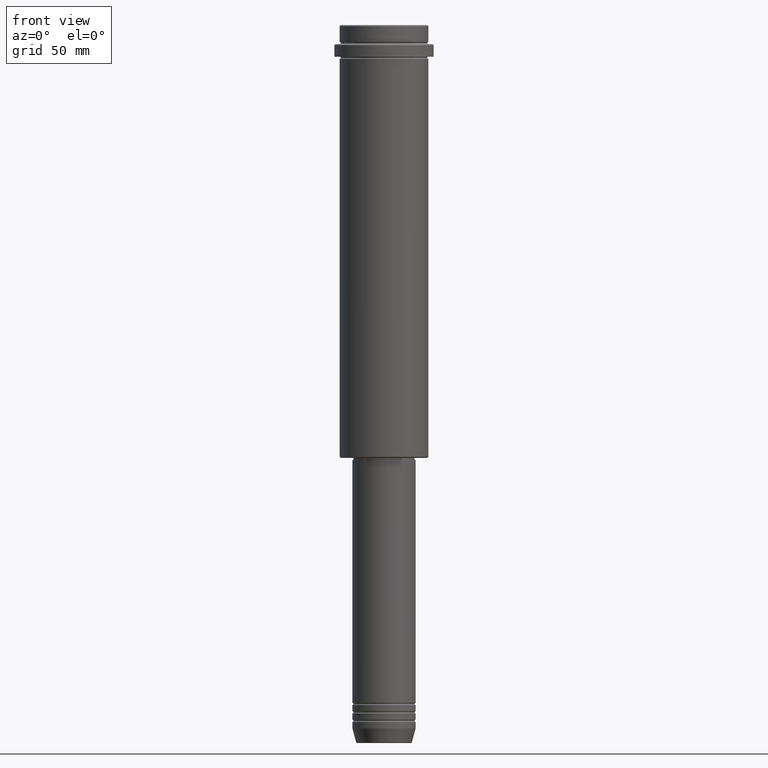
[diagram: clean part render]
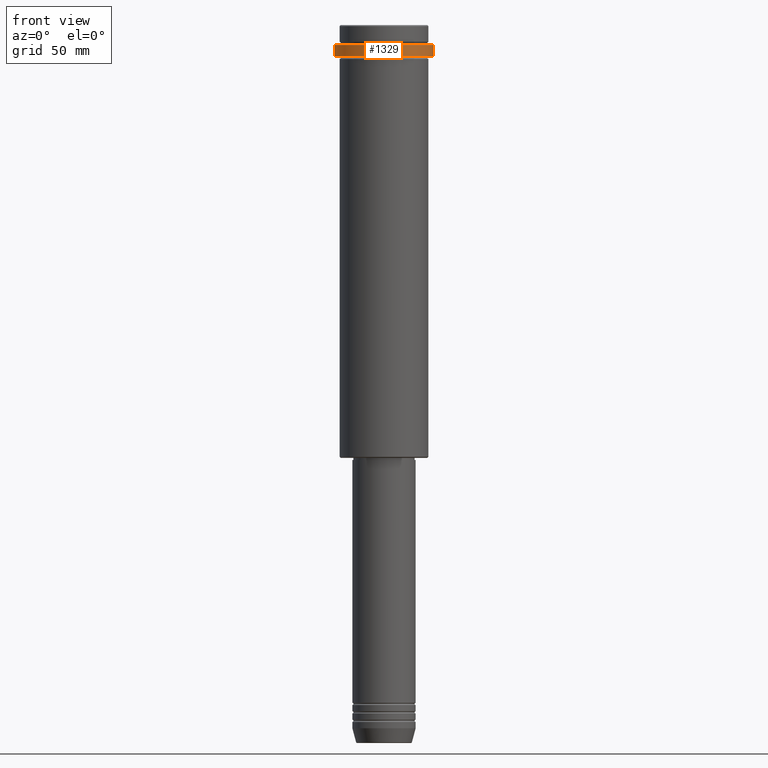
[diagram: same view with one face highlighted and labeled with its STEP entity id]
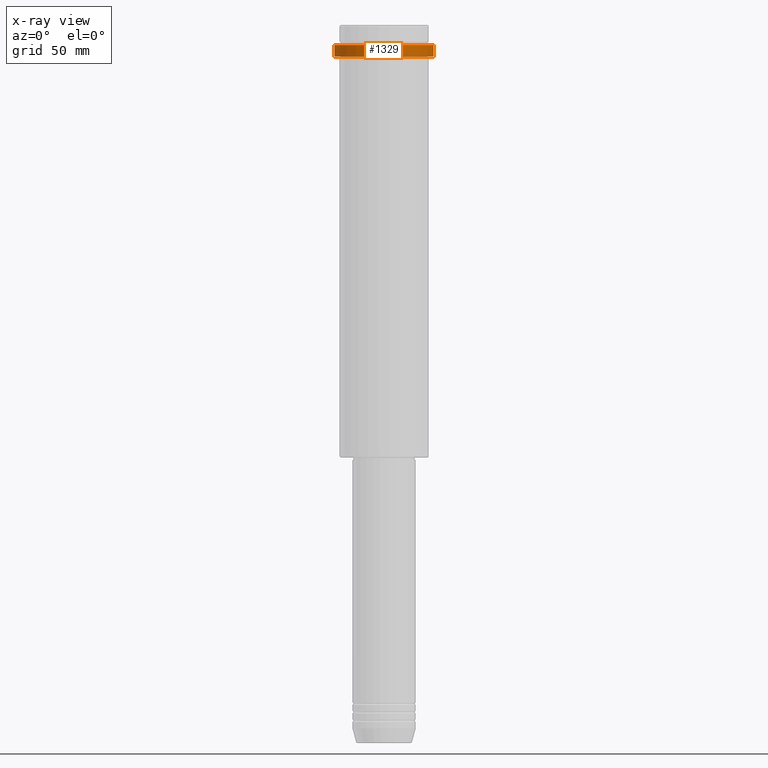
[diagram: x-ray of the same camera — body ghosted, the highlighted face saturated]
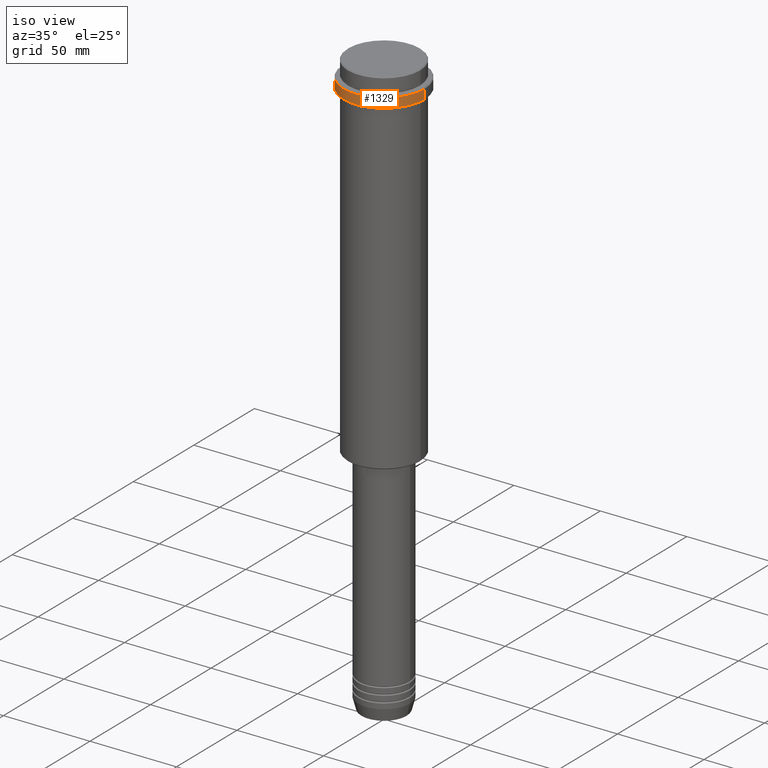
[diagram: same view with one face highlighted and labeled with its STEP entity id]
A machine part, front view. The second image highlights one B-rep face of the part: STEP entity #1329.
The next image is the same camera in x-ray: the body ghosted, the highlighted face saturated — about 0% of this face is hidden behind the body in this view.
A second angle (iso view) of the same face is appended — the face is thin or edge-on in the first view.
In plain terms, the highlighted cylindrical surface (partial cylindrical patch) has radius 23.5 mm, axis along (-0, -0, 1).
Its self-contained STEP definition (entity closure, byte-faithful):
#57 = EDGE_LOOP ( 'NONE', ( #1203, #1039, #1390, #273 ) ) ;
#65 = VERTEX_POINT ( 'NONE', #1032 ) ;
#101 = VERTEX_POINT ( 'NONE', #254 ) ;
#133 = VECTOR ( 'NONE', #980, 1000.000000000000000 ) ;
#194 = CIRCLE ( 'NONE', #870, 23.50000000000000000 ) ;
#203 = FACE_OUTER_BOUND ( 'NONE', #57, .T. ) ;
#223 = AXIS2_PLACEMENT_3D ( 'NONE', #998, #437, #892 ) ;
#254 = CARTESIAN_POINT ( 'NONE',  ( 23.50000000000000000, 0.000000000000000000, -9.499999999999973355 ) ) ;
#273 = ORIENTED_EDGE ( 'NONE', *, *, #477, .T. ) ;
#276 = CARTESIAN_POINT ( 'NONE',  ( -23.50000000000000711, 2.877919977996281109E-15, -15.00000000000000178 ) ) ;
#403 = DIRECTION ( 'NONE',  ( 1.000000000000000000, 0.000000000000000000, 0.000000000000000000 ) ) ;
#416 = LINE ( 'NONE', #554, #133 ) ;
#437 = DIRECTION ( 'NONE',  ( -0.000000000000000000, -0.000000000000000000, 1.000000000000000000 ) ) ;
#460 = VERTEX_POINT ( 'NONE', #276 ) ;
#462 = EDGE_CURVE ( 'NONE', #1176, #101, #1280, .T. ) ;
#477 = EDGE_CURVE ( 'NONE', #101, #65, #194, .T. ) ;
#530 = EDGE_CURVE ( 'NONE', #460, #65, #416, .T. ) ;
#554 = CARTESIAN_POINT ( 'NONE',  ( -23.50000000000000000, 2.877919977996280320E-15, 0.000000000000000000 ) ) ;
#581 = CARTESIAN_POINT ( 'NONE',  ( 23.50000000000000355, 0.000000000000000000, -15.00000000000000178 ) ) ;
#594 = DIRECTION ( 'NONE',  ( -0.000000000000000000, -0.000000000000000000, 1.000000000000000000 ) ) ;
#663 = AXIS2_PLACEMENT_3D ( 'NONE', #1182, #1402, #403 ) ;
#823 = DIRECTION ( 'NONE',  ( 0.000000000000000000, 0.000000000000000000, -1.000000000000000000 ) ) ;
#870 = AXIS2_PLACEMENT_3D ( 'NONE', #1396, #823, #957 ) ;
#892 = DIRECTION ( 'NONE',  ( 1.000000000000000000, 0.000000000000000000, 0.000000000000000000 ) ) ;
#957 = DIRECTION ( 'NONE',  ( 1.000000000000000000, 0.000000000000000000, 0.000000000000000000 ) ) ;
#980 = DIRECTION ( 'NONE',  ( -0.000000000000000000, -0.000000000000000000, 1.000000000000000000 ) ) ;
#998 = CARTESIAN_POINT ( 'NONE',  ( 0.000000000000000000, 0.000000000000000000, -15.00000000000000178 ) ) ;
#1032 = CARTESIAN_POINT ( 'NONE',  ( -23.50000000000000000, 2.877919977996280320E-15, -9.499999999999973355 ) ) ;
#1039 = ORIENTED_EDGE ( 'NONE', *, *, #1066, .T. ) ;
#1066 = EDGE_CURVE ( 'NONE', #460, #1176, #1144, .T. ) ;
#1093 = VECTOR ( 'NONE', #594, 1000.000000000000000 ) ;
#1144 = CIRCLE ( 'NONE', #223, 23.50000000000000355 ) ;
#1176 = VERTEX_POINT ( 'NONE', #581 ) ;
#1177 = CARTESIAN_POINT ( 'NONE',  ( 23.50000000000000000, 0.000000000000000000, 0.000000000000000000 ) ) ;
#1182 = CARTESIAN_POINT ( 'NONE',  ( 0.000000000000000000, 0.000000000000000000, 0.000000000000000000 ) ) ;
#1194 = CYLINDRICAL_SURFACE ( 'NONE', #663, 23.50000000000000000 ) ;
#1203 = ORIENTED_EDGE ( 'NONE', *, *, #530, .F. ) ;
#1280 = LINE ( 'NONE', #1177, #1093 ) ;
#1329 = ADVANCED_FACE ( 'NONE', ( #203 ), #1194, .T. ) ;
#1390 = ORIENTED_EDGE ( 'NONE', *, *, #462, .T. ) ;
#1396 = CARTESIAN_POINT ( 'NONE',  ( 0.000000000000000000, 0.000000000000000000, -9.499999999999973355 ) ) ;
#1402 = DIRECTION ( 'NONE',  ( -0.000000000000000000, -0.000000000000000000, 1.000000000000000000 ) ) ;